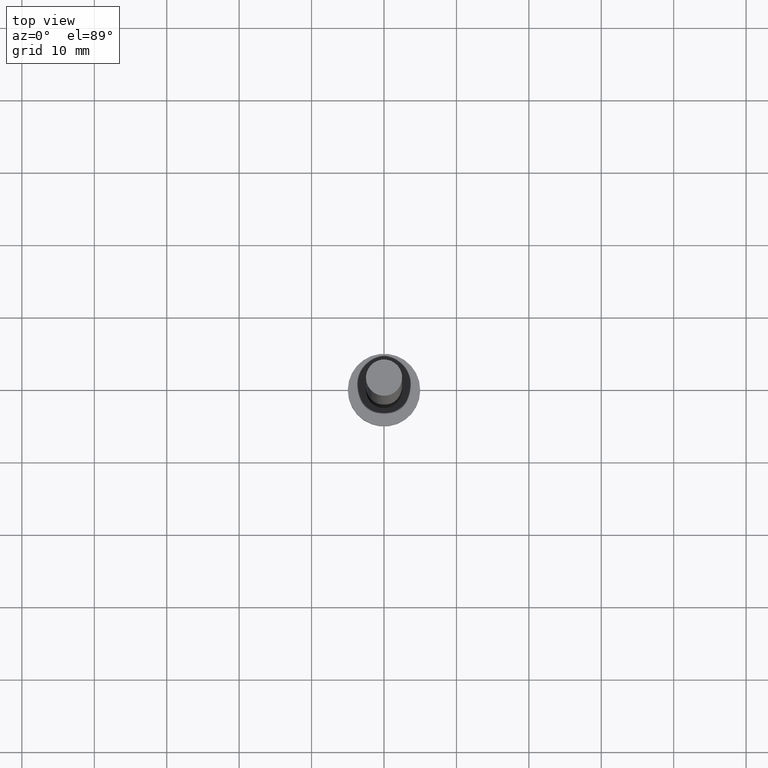
[diagram: clean part render]
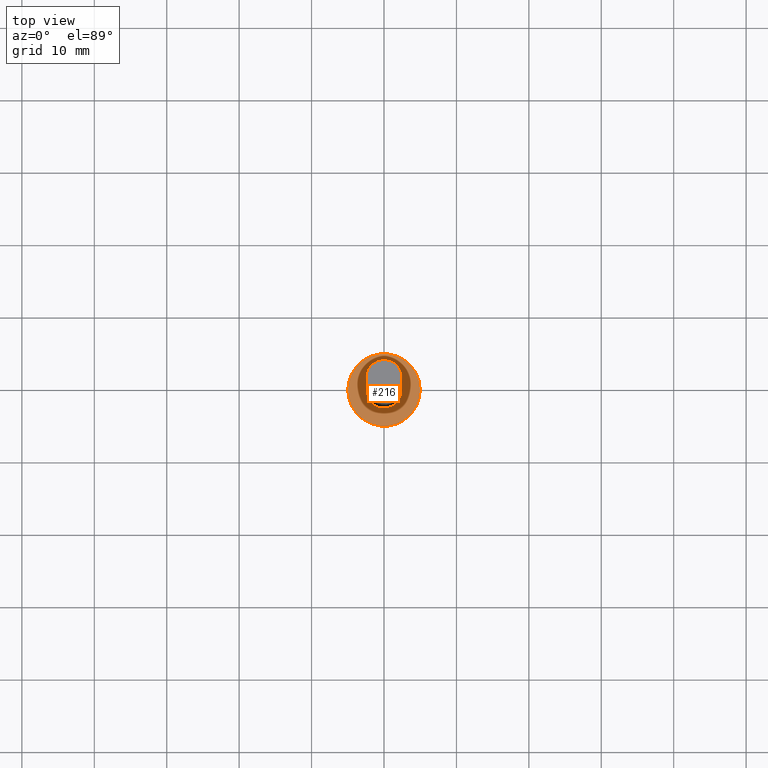
[diagram: same view with one face highlighted and labeled with its STEP entity id]
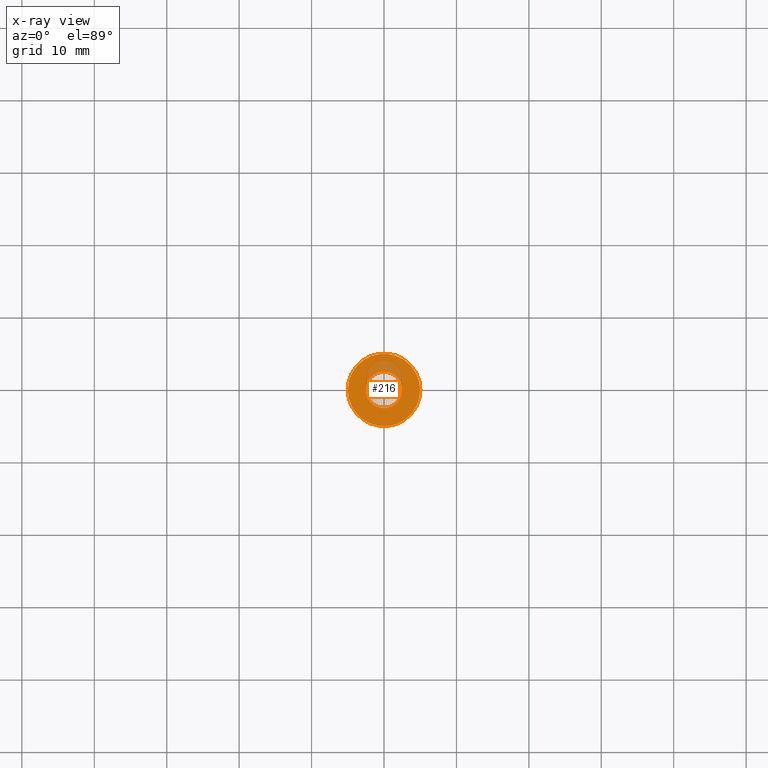
[diagram: x-ray of the same camera — body ghosted, the highlighted face saturated]
A machine part, top view. The second image highlights one B-rep face of the part: STEP entity #216.
The next image is the same camera in x-ray: the body ghosted, the highlighted face saturated — about 14% of this face is hidden behind the body in this view.
In plain terms, the highlighted planar face has unit normal (0, 0, 1).
Its self-contained STEP definition (entity closure, byte-faithful):
#4 = ORIENTED_EDGE ( 'NONE', *, *, #13, .T. ) ;
#10 = ORIENTED_EDGE ( 'NONE', *, *, #125, .T. ) ;
#13 = EDGE_CURVE ( 'NONE', #155, #184, #154, .T. ) ;
#14 = CIRCLE ( 'NONE', #185, 2.500000000000000000 ) ;
#23 = PLANE ( 'NONE',  #36 ) ;
#26 = DIRECTION ( 'NONE',  ( 0.000000000000000000, 0.000000000000000000, 1.000000000000000000 ) ) ;
#30 = CARTESIAN_POINT ( 'NONE',  ( 2.500000000000000000, 3.061616997868382648E-16, 3.000000000000000000 ) ) ;
#36 = AXIS2_PLACEMENT_3D ( 'NONE', #173, #213, #153 ) ;
#37 = FACE_OUTER_BOUND ( 'NONE', #181, .T. ) ;
#67 = EDGE_CURVE ( 'NONE', #147, #161, #133, .T. ) ;
#68 = DIRECTION ( 'NONE',  ( 0.000000000000000000, 0.000000000000000000, 1.000000000000000000 ) ) ;
#83 = AXIS2_PLACEMENT_3D ( 'NONE', #123, #26, #124 ) ;
#93 = DIRECTION ( 'NONE',  ( 1.000000000000000000, 0.000000000000000000, 0.000000000000000000 ) ) ;
#111 = CIRCLE ( 'NONE', #129, 5.000000000000000000 ) ;
#114 = CARTESIAN_POINT ( 'NONE',  ( -5.000000000000000000, 0.000000000000000000, 3.000000000000000000 ) ) ;
#116 = DIRECTION ( 'NONE',  ( 0.000000000000000000, 0.000000000000000000, 1.000000000000000000 ) ) ;
#119 = EDGE_CURVE ( 'NONE', #161, #147, #14, .T. ) ;
#123 = CARTESIAN_POINT ( 'NONE',  ( 0.000000000000000000, 0.000000000000000000, 3.000000000000000000 ) ) ;
#124 = DIRECTION ( 'NONE',  ( 1.000000000000000000, 0.000000000000000000, 0.000000000000000000 ) ) ;
#125 = EDGE_CURVE ( 'NONE', #184, #155, #111, .T. ) ;
#127 = CARTESIAN_POINT ( 'NONE',  ( 0.000000000000000000, 0.000000000000000000, 3.000000000000000000 ) ) ;
#129 = AXIS2_PLACEMENT_3D ( 'NONE', #127, #68, #93 ) ;
#132 = DIRECTION ( 'NONE',  ( 1.000000000000000000, 0.000000000000000000, 0.000000000000000000 ) ) ;
#133 = CIRCLE ( 'NONE', #218, 2.500000000000000000 ) ;
#143 = ORIENTED_EDGE ( 'NONE', *, *, #67, .F. ) ;
#144 = EDGE_LOOP ( 'NONE', ( #143, #227 ) ) ;
#145 = DIRECTION ( 'NONE',  ( 0.000000000000000000, 0.000000000000000000, 1.000000000000000000 ) ) ;
#147 = VERTEX_POINT ( 'NONE', #205 ) ;
#153 = DIRECTION ( 'NONE',  ( 1.000000000000000000, 0.000000000000000000, -0.000000000000000000 ) ) ;
#154 = CIRCLE ( 'NONE', #83, 5.000000000000000000 ) ;
#155 = VERTEX_POINT ( 'NONE', #204 ) ;
#161 = VERTEX_POINT ( 'NONE', #30 ) ;
#173 = CARTESIAN_POINT ( 'NONE',  ( 0.000000000000000000, 0.000000000000000000, 3.000000000000000000 ) ) ;
#181 = EDGE_LOOP ( 'NONE', ( #10, #4 ) ) ;
#184 = VERTEX_POINT ( 'NONE', #114 ) ;
#185 = AXIS2_PLACEMENT_3D ( 'NONE', #224, #145, #132 ) ;
#195 = FACE_BOUND ( 'NONE', #144, .T. ) ;
#204 = CARTESIAN_POINT ( 'NONE',  ( 5.000000000000000000, 6.123233995736766282E-16, 3.000000000000000000 ) ) ;
#205 = CARTESIAN_POINT ( 'NONE',  ( -2.500000000000000000, 0.000000000000000000, 3.000000000000000000 ) ) ;
#213 = DIRECTION ( 'NONE',  ( 0.000000000000000000, 0.000000000000000000, 1.000000000000000000 ) ) ;
#216 = ADVANCED_FACE ( 'NONE', ( #195, #37 ), #23, .T. ) ;
#218 = AXIS2_PLACEMENT_3D ( 'NONE', #225, #116, #247 ) ;
#224 = CARTESIAN_POINT ( 'NONE',  ( 0.000000000000000000, 0.000000000000000000, 3.000000000000000000 ) ) ;
#225 = CARTESIAN_POINT ( 'NONE',  ( 0.000000000000000000, 0.000000000000000000, 3.000000000000000000 ) ) ;
#227 = ORIENTED_EDGE ( 'NONE', *, *, #119, .F. ) ;
#247 = DIRECTION ( 'NONE',  ( 1.000000000000000000, 0.000000000000000000, 0.000000000000000000 ) ) ;